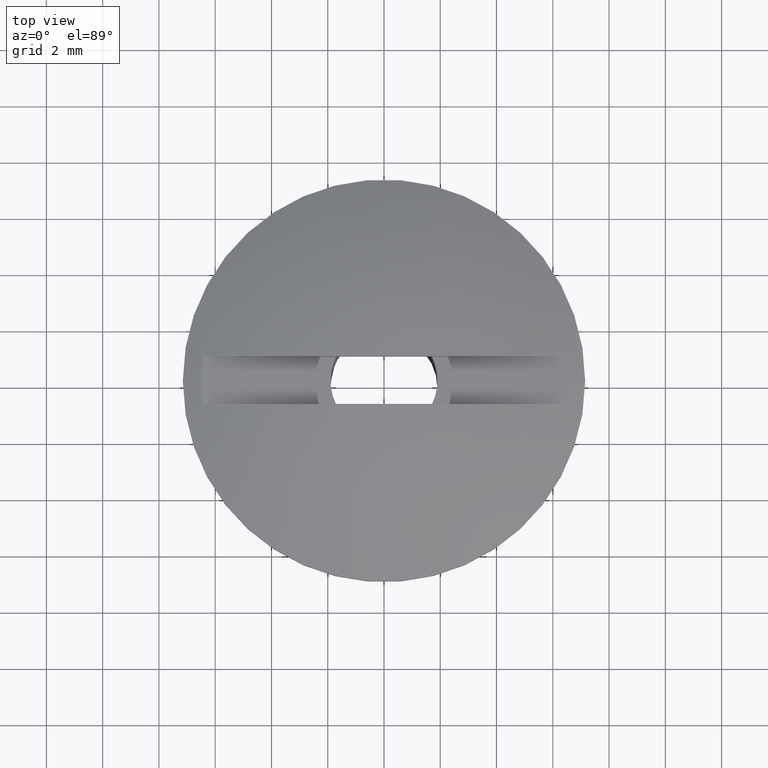
[diagram: clean part render]
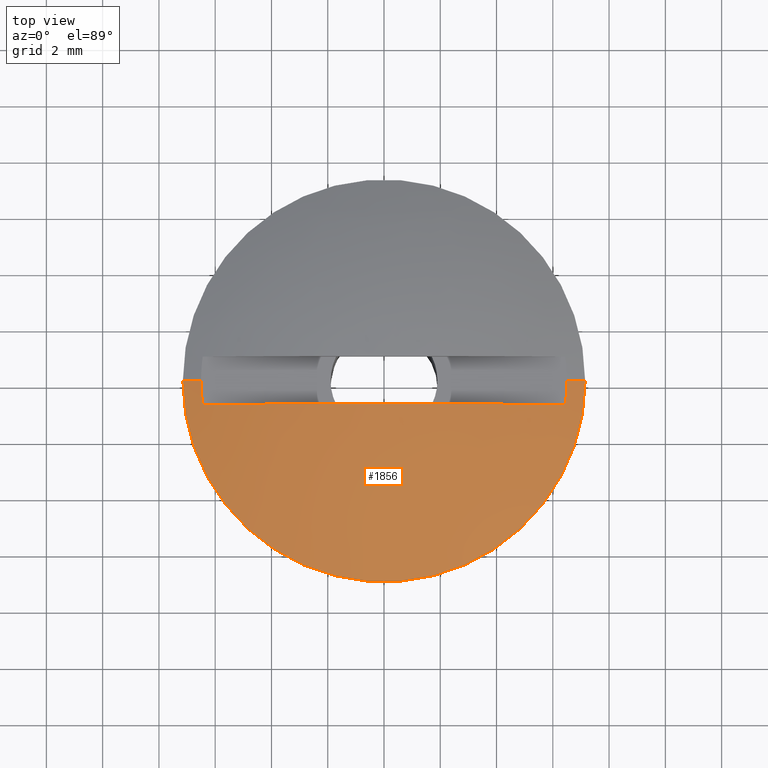
[diagram: same view with one face highlighted and labeled with its STEP entity id]
A machine part, top view. The second image highlights one B-rep face of the part: STEP entity #1856.
In plain terms, the highlighted face is a freeform B-spline surface patch.
Its self-contained STEP definition (entity closure, byte-faithful):
#42 = CARTESIAN_POINT ( 'NONE',  ( 4.351536304258065300, -0.8499999999999995300, 11.85016043457589800 ) ) ;
#49 = CARTESIAN_POINT ( 'NONE',  ( 1.087815165211636300, -0.8500000000000008700, 12.30121568767199000 ) ) ;
#91 = CARTESIAN_POINT ( 'NONE',  ( -2.199387845426258500, -0.8499999999999780000, 12.22762834914295200 ) ) ;
#99 = AXIS2_PLACEMENT_3D ( 'NONE', #1252, #2682, #1467 ) ;
#140 = VERTEX_POINT ( 'NONE', #1465 ) ;
#142 = CARTESIAN_POINT ( 'NONE',  ( 6.719354066667440500, -7.999999994835683800E-006, 11.11465107343305500 ) ) ;
#189 = CARTESIAN_POINT ( 'NONE',  ( 4.286937253965013500, -7.109918092689832200, 10.94406900000000200 ) ) ;
#202 = CARTESIAN_POINT ( 'NONE',  ( 0.02820005179272934400, -2.992367486626660500, 12.23258036339877100 ) ) ;
#268 = CARTESIAN_POINT ( 'NONE',  ( -6.445786444261693200, -0.8499999999999998700, 11.19406900172935000 ) ) ;
#293 = CARTESIAN_POINT ( 'NONE',  ( -5.401501512201690500, -0.8500000000000000900, 11.54604153403503200 ) ) ;
#391 = EDGE_CURVE ( 'NONE', #1493, #2558, #1973, .T. ) ;
#397 = CARTESIAN_POINT ( 'NONE',  ( 7.148729817869957000, 0.1347624316992944400, 10.94406900000000100 ) ) ;
#409 = CARTESIAN_POINT ( 'NONE',  ( 3.025251523886094400, -1.709380703418737600, 12.23258036339877500 ) ) ;
#413 = ORIENTED_EDGE ( 'NONE', *, *, #2122, .F. ) ;
#436 = FACE_OUTER_BOUND ( 'NONE', #1496, .T. ) ;
#461 = CARTESIAN_POINT ( 'NONE',  ( 6.445786444261689700, -0.8499999999999999800, 11.19406900172935200 ) ) ;
#537 = CARTESIAN_POINT ( 'NONE',  ( 7.150000000000000400, -3.999999996130777900E-006, 10.94406900000000100 ) ) ;
#544 = CARTESIAN_POINT ( 'NONE',  ( -3.809110494901594800, -0.8499999999999777700, 11.94516745128650500 ) ) ;
#547 = CARTESIAN_POINT ( 'NONE',  ( 6.935513689324601200, -7.999999994862155300E-006, 11.03130420393268800 ) ) ;
#559 = ORIENTED_EDGE ( 'NONE', *, *, #391, .T. ) ;
#602 = CARTESIAN_POINT ( 'NONE',  ( -5.127257932808900500, -3.025970309163778200, 11.76675331078246600 ) ) ;
#612 = CARTESIAN_POINT ( 'NONE',  ( -0.8081780592356239100, 0.0000000000000000000, 12.32652320056815000 ) ) ;
#647 =( BOUNDED_CURVE ( )  B_SPLINE_CURVE ( 3, ( #2153, #2546, #2365, #1139 ),
 .UNSPECIFIED., .F., .T. ) 
 B_SPLINE_CURVE_WITH_KNOTS ( ( 4, 4 ),
 ( 0.0000000000000000000, 0.09523011255646159100 ),
 .UNSPECIFIED. ) 
 CURVE ( )  GEOMETRIC_REPRESENTATION_ITEM ( )  RATIONAL_B_SPLINE_CURVE ( ( 1.000000000000000000, 0.9988221645102962600, 0.9977564944268499900, 0.9968029897496611900 ) ) 
 REPRESENTATION_ITEM ( '' )  );
#698 = CIRCLE ( 'NONE', #99, 6.501588735458718700 ) ;
#740 = CARTESIAN_POINT ( 'NONE',  ( 7.150000000000000400, -3.999999996130777900E-006, 10.94406900000000100 ) ) ;
#755 = VERTEX_POINT ( 'NONE', #2536 ) ;
#812 = ORIENTED_EDGE ( 'NONE', *, *, #1702, .T. ) ;
#828 = CARTESIAN_POINT ( 'NONE',  ( 0.04831999569403088600, -5.127031879758004800, 11.76675331078246800 ) ) ;
#837 = CARTESIAN_POINT ( 'NONE',  ( -0.4693310851918019400, -0.8126392021485213700, 12.32652320056814700 ) ) ;
#936 = EDGE_CURVE ( 'NONE', #140, #2379, #1453, .T. ) ;
#988 = CARTESIAN_POINT ( 'NONE',  ( 0.0000000000000000000, -3.999999997006400700E-006, 11.19406900172935500 ) ) ;
#1034 = CARTESIAN_POINT ( 'NONE',  ( 5.183378935872271500, -2.928797065565012800, 11.76675331078246600 ) ) ;
#1048 = CARTESIAN_POINT ( 'NONE',  ( 0.4845571195685018900, -0.8036532003192431400, 12.32652320056814700 ) ) ;
#1084 = ORIENTED_EDGE ( 'NONE', *, *, #1554, .T. ) ;
#1132 = CIRCLE ( 'NONE', #1885, 7.150000000000000400 ) ;
#1139 = CARTESIAN_POINT ( 'NONE',  ( -6.501588735457489500, 0.0000000000000000000, 11.19406900172935500 ) ) ;
#1198 = CARTESIAN_POINT ( 'NONE',  ( 0.0000000000000000000, -3.999999997006400700E-006, 10.94406900000000100 ) ) ;
#1209 = DIRECTION ( 'NONE',  ( 1.000000000000000000, 0.0000000000000000000, 0.0000000000000000000 ) ) ;
#1252 = CARTESIAN_POINT ( 'NONE',  ( 0.0000000000000000000, -3.999999997006400700E-006, 11.19406900172935500 ) ) ;
#1255 = CARTESIAN_POINT ( 'NONE',  ( -2.992496362404070400, 0.0000000000000000000, 12.23258036339877100 ) ) ;
#1262 = CARTESIAN_POINT ( 'NONE',  ( -7.149999999999998600, 0.0000000000000000000, 10.94406900000000100 ) ) ;
#1263 = CARTESIAN_POINT ( 'NONE',  ( 0.8080345550145835400, 0.01522535810347309600, 12.32652320056815000 ) ) ;
#1331 = CARTESIAN_POINT ( 'NONE',  ( -1.112581260775427500, -0.8499999999999993100, 12.32399802229161700 ) ) ;
#1413 = DIRECTION ( 'NONE',  ( 1.000000000000000000, 0.0000000000000000000, 0.0000000000000000000 ) ) ;
#1453 = B_SPLINE_CURVE_WITH_KNOTS ( 'NONE', 3,
 ( #461, #1768, #42, #1530, #2326, #49, #2538, #1331, #91, #544, #2551, #293, #2134, #268 ),
 .UNSPECIFIED., .F., .F.,
 ( 4, 2, 2, 2, 2, 2, 4 ),
 ( 6.314488766312914300E-018, 0.003286518664587449700, 0.004929777996881171100, 0.006573037329174894300, 0.009859555993762338800, 0.01150281532605606200, 0.01314607465834978300 ),
 .UNSPECIFIED. ) ;
#1460 = CARTESIAN_POINT ( 'NONE',  ( 0.06738420875871156700, -7.149686466265610100, 10.94406900000000100 ) ) ;
#1465 = CARTESIAN_POINT ( 'NONE',  ( 6.445786444261689700, -0.8499999999999999800, 11.19406900172935200 ) ) ;
#1467 = DIRECTION ( 'NONE',  ( 1.000000000000000000, 1.065814103989878500E-014, 0.0000000000000000000 ) ) ;
#1471 = CARTESIAN_POINT ( 'NONE',  ( -1.737813546983869600, -3.009010409578614100, 12.23258036339877500 ) ) ;
#1474 = ORIENTED_EDGE ( 'NONE', *, *, #1685, .T. ) ;
#1493 = VERTEX_POINT ( 'NONE', #537 ) ;
#1496 = EDGE_LOOP ( 'NONE', ( #1474, #559, #812, #1555, #1084, #413 ) ) ;
#1525 = VERTEX_POINT ( 'NONE', #2017 ) ;
#1530 = CARTESIAN_POINT ( 'NONE',  ( 2.728670495609855500, -0.8499999999999996400, 12.13466712763703400 ) ) ;
#1554 = EDGE_CURVE ( 'NONE', #2379, #1525, #698, .T. ) ;
#1555 = ORIENTED_EDGE ( 'NONE', *, *, #936, .T. ) ;
#1660 = CARTESIAN_POINT ( 'NONE',  ( 7.228265393044297900, -4.084228385679705500, 10.94406900000000200 ) ) ;
#1671 = CARTESIAN_POINT ( 'NONE',  ( 1.794213650569328200, -2.975724563674707800, 12.23258036339877500 ) ) ;
#1685 = EDGE_CURVE ( 'NONE', #755, #1493, #1132, .T. ) ;
#1702 = EDGE_CURVE ( 'NONE', #2558, #140, #2157, .T. ) ;
#1768 = CARTESIAN_POINT ( 'NONE',  ( 5.410311989398871400, -0.8499999999999999800, 11.56846019252291100 ) ) ;
#1844 = CARTESIAN_POINT ( 'NONE',  ( 6.501588735457489500, -7.999999994809017500E-006, 11.19406900172935500 ) ) ;
#1856 = ADVANCED_FACE ( 'NONE', ( #436 ), #2081, .F. ) ;
#1859 = CARTESIAN_POINT ( 'NONE',  ( -5.127255572114947300, 0.0000000000000000000, 11.76675331078246800 ) ) ;
#1867 = CARTESIAN_POINT ( 'NONE',  ( 2.991964795698558900, 0.05639759854185336800, 12.23258036339877100 ) ) ;
#1885 = AXIS2_PLACEMENT_3D ( 'NONE', #1198, #2622, #1413 ) ;
#1973 =( BOUNDED_CURVE ( )  B_SPLINE_CURVE ( 3, ( #740, #547, #142, #1844 ),
 .UNSPECIFIED., .F., .T. ) 
 B_SPLINE_CURVE_WITH_KNOTS ( ( 4, 4 ),
 ( 0.0000000000000000000, 0.09523011255646159100 ),
 .UNSPECIFIED. ) 
 CURVE ( )  GEOMETRIC_REPRESENTATION_ITEM ( )  RATIONAL_B_SPLINE_CURVE ( ( 1.000000000000000000, 0.9988221645102962600, 0.9977564944268499900, 0.9968029897496611900 ) ) 
 REPRESENTATION_ITEM ( '' )  );
#2017 = CARTESIAN_POINT ( 'NONE',  ( -6.501588735457489500, 0.0000000000000000000, 11.19406900172935500 ) ) ;
#2065 = CARTESIAN_POINT ( 'NONE',  ( -2.977515935477070800, -5.155549060197433400, 11.76675331078246600 ) ) ;
#2076 = CARTESIAN_POINT ( 'NONE',  ( -0.8081804199295774500, -0.4769652648221407400, 12.32652320056814700 ) ) ;
#2078 = CARTESIAN_POINT ( 'NONE',  ( 6.501588735457489500, -7.999999994809017500E-006, 11.19406900172935500 ) ) ;
#2081 =( BOUNDED_SURFACE ( )  B_SPLINE_SURFACE ( 3, 3, ( 
 ( #1262, #2463, #2676, #1460, #189, #1660, #397 ),
 ( #1859, #602, #2065, #828, #2265, #1034, #2471 ),
 ( #1255, #2685, #1471, #202, #1671, #409, #1867 ),
 ( #612, #2076, #837, #2274, #1048, #2483, #1263 ) ),
 .UNSPECIFIED., .F., .F., .T. ) 
 B_SPLINE_SURFACE_WITH_KNOTS ( ( 4, 4 ),
 ( 4, 3, 4 ),
 ( 0.0000000000000000000, 0.8892512737954054700 ),
 ( 0.0000000000000000000, 0.5000000000000000000, 1.000000000000000000 ),
 .UNSPECIFIED. ) 
 GEOMETRIC_REPRESENTATION_ITEM ( )  RATIONAL_B_SPLINE_SURFACE ( (
 ( 1.000000000000000000, 0.8025111190447794500, 0.8025111190447794500, 1.000000000000000000, 0.8025111190447794500, 0.8025111190447794500, 1.000000000000000000),
 ( 0.9890014651729047700, 0.7936846725528342600, 0.7936846725528342600, 0.9890014651729047700, 0.7936846725528342600, 0.7936846725528342600, 0.9890014651729047700),
 ( 0.9877833914506870500, 0.7927071548469383200, 0.7927071548469383200, 0.9877833914506870500, 0.7927071548469383200, 0.7927071548469383200, 0.9877833914506870500),
 ( 0.9963457788333470700, 0.7995785659270916400, 0.7995785659270916400, 0.9963457788333470700, 0.7995785659270916400, 0.7995785659270916400, 0.9963457788333470700) ) ) 
 REPRESENTATION_ITEM ( '' )  SURFACE ( )  );
#2122 = EDGE_CURVE ( 'NONE', #755, #1525, #647, .T. ) ;
#2134 = CARTESIAN_POINT ( 'NONE',  ( -5.928064567513653800, -0.8500000000000002000, 11.38125904685823500 ) ) ;
#2135 = AXIS2_PLACEMENT_3D ( 'NONE', #988, #2430, #1209 ) ;
#2153 = CARTESIAN_POINT ( 'NONE',  ( -7.150000000000000400, -3.999999997006400700E-006, 10.94406900000000100 ) ) ;
#2157 = CIRCLE ( 'NONE', #2135, 6.501588735458718700 ) ;
#2226 = CARTESIAN_POINT ( 'NONE',  ( -6.445786444261693200, -0.8499999999999998700, 11.19406900172935000 ) ) ;
#2265 = CARTESIAN_POINT ( 'NONE',  ( 3.074155926865132800, -5.098514699318578800, 11.76675331078246600 ) ) ;
#2274 = CARTESIAN_POINT ( 'NONE',  ( 0.007613017188350002000, -0.8081462012338823700, 12.32652320056815000 ) ) ;
#2326 = CARTESIAN_POINT ( 'NONE',  ( 2.181967188264089000, -0.8500000000000007500, 12.20619556156173100 ) ) ;
#2365 = CARTESIAN_POINT ( 'NONE',  ( -6.719354066667440500, 0.0000000000000000000, 11.11465107343305500 ) ) ;
#2379 = VERTEX_POINT ( 'NONE', #2226 ) ;
#2430 = DIRECTION ( 'NONE',  ( 0.0000000000000000000, 0.0000000000000000000, -1.000000000000000000 ) ) ;
#2463 = CARTESIAN_POINT ( 'NONE',  ( -7.150002360693951800, -4.219740445198147500, 10.94406900000000200 ) ) ;
#2471 = CARTESIAN_POINT ( 'NONE',  ( 5.126344747513979200, 0.09663569906629185200, 11.76675331078246800 ) ) ;
#2483 = CARTESIAN_POINT ( 'NONE',  ( 0.8170225184192854200, -0.4616552143318732300, 12.32652320056814700 ) ) ;
#2536 = CARTESIAN_POINT ( 'NONE',  ( -7.150000000000000400, -3.999999997006400700E-006, 10.94406900000000100 ) ) ;
#2538 = CARTESIAN_POINT ( 'NONE',  ( 0.5389526259562028600, -0.8499999999999993100, 12.32501348234358400 ) ) ;
#2546 = CARTESIAN_POINT ( 'NONE',  ( -6.935513689324601200, 0.0000000000000000000, 11.03130420393268800 ) ) ;
#2551 = CARTESIAN_POINT ( 'NONE',  ( -4.342243256859173800, -0.8500000000000002000, 11.82784823588109400 ) ) ;
#2558 = VERTEX_POINT ( 'NONE', #2078 ) ;
#2622 = DIRECTION ( 'NONE',  ( 0.0000000000000000000, 0.0000000000000000000, 1.000000000000000000 ) ) ;
#2676 = CARTESIAN_POINT ( 'NONE',  ( -4.152168836447589100, -7.189454839841388000, 10.94406900000000200 ) ) ;
#2682 = DIRECTION ( 'NONE',  ( 0.0000000000000000000, 0.0000000000000000000, -1.000000000000000000 ) ) ;
#2685 = CARTESIAN_POINT ( 'NONE',  ( -2.992498723098024900, -1.766092018537733300, 12.23258036339877500 ) ) ;